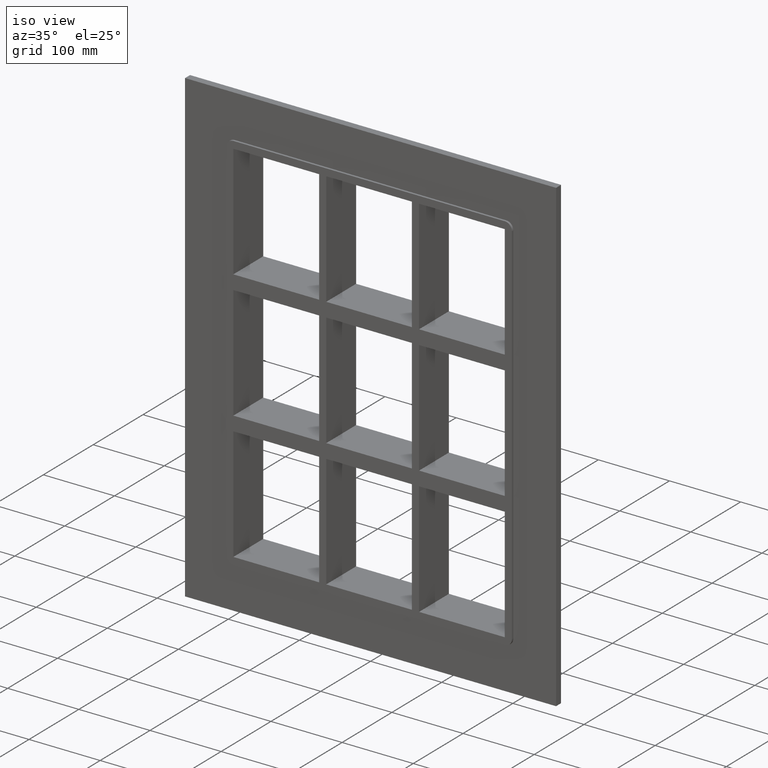
[diagram: clean part render]
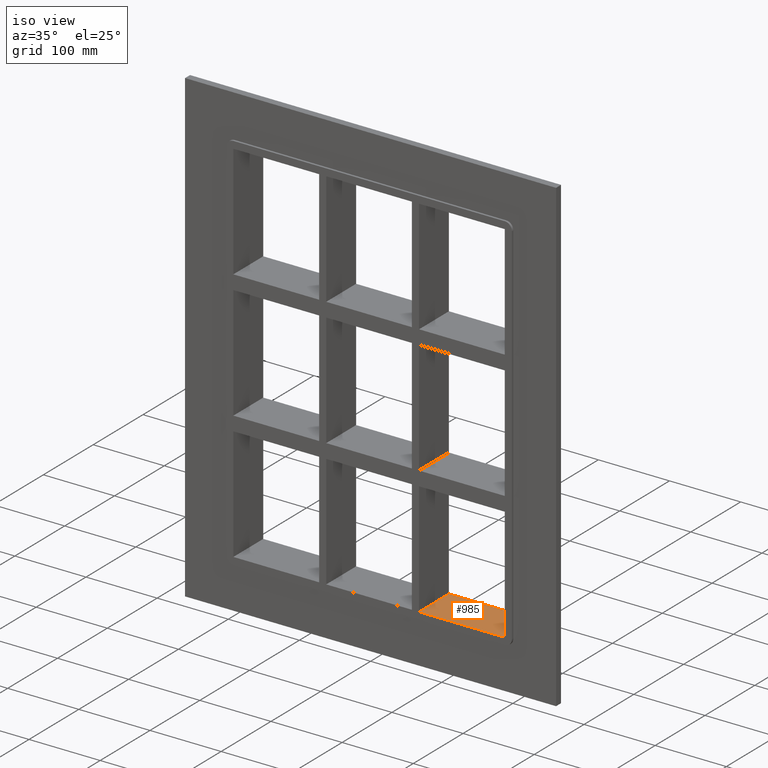
[diagram: same view with one face highlighted and labeled with its STEP entity id]
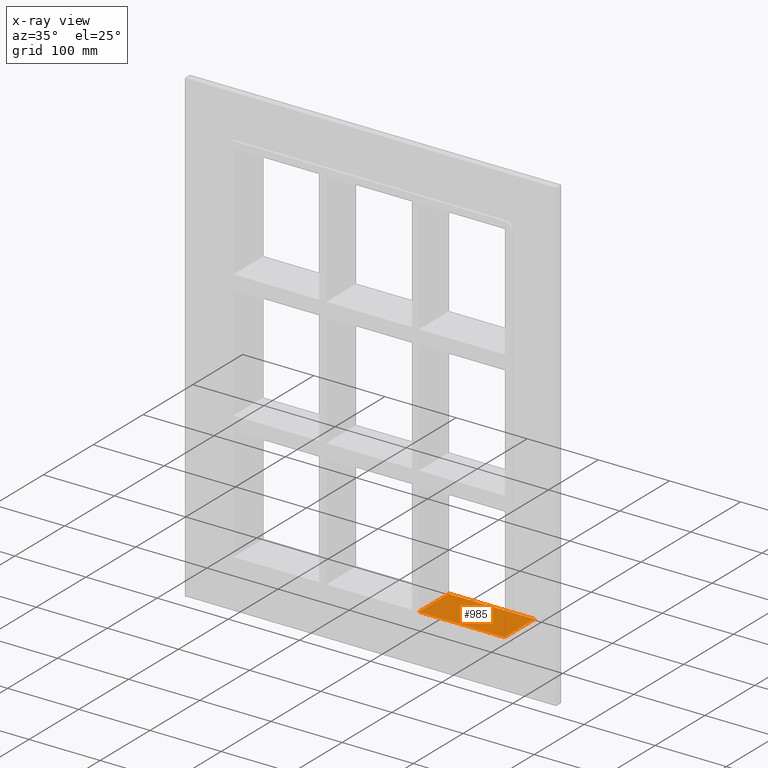
[diagram: x-ray of the same camera — body ghosted, the highlighted face saturated]
A machine part, iso view. The second image highlights one B-rep face of the part: STEP entity #985.
The next image is the same camera in x-ray: the body ghosted, the highlighted face saturated — about 0% of this face is hidden behind the body in this view.
In plain terms, the highlighted planar face has unit normal (0, 0, -1).
Its self-contained STEP definition (entity closure, byte-faithful):
#793=CARTESIAN_POINT('',(70.250000000003638,57.0,-259.24999999998414));
#794=VERTEX_POINT('',#793);
#795=CARTESIAN_POINT('',(190.75000000000003,57.0,-259.25000000000006));
#796=VERTEX_POINT('',#795);
#797=CARTESIAN_POINT('',(70.250000000003638,57.0,-259.25000000000006));
#798=DIRECTION('',(1.0,0.0,0.0));
#799=VECTOR('',#798,120.49999999999639);
#800=LINE('',#797,#799);
#801=EDGE_CURVE('',#794,#796,#800,.T.);
#920=CARTESIAN_POINT('',(70.250000000003638,-3.0,-259.24999999998408));
#921=VERTEX_POINT('',#920);
#928=CARTESIAN_POINT('',(70.250000000003638,57.000000000000007,-259.25000000000006));
#929=DIRECTION('',(0.0,-1.0,0.0));
#930=VECTOR('',#929,60.000000000000007);
#931=LINE('',#928,#930);
#932=EDGE_CURVE('',#794,#921,#931,.T.);
#962=CARTESIAN_POINT('',(190.75000000000003,0.0,-259.25000000000006));
#963=DIRECTION('',(0.0,0.0,-1.0));
#964=DIRECTION('',(-1.0,0.0,0.0));
#965=AXIS2_PLACEMENT_3D('',#962,#963,#964);
#966=PLANE('',#965);
#967=ORIENTED_EDGE('',*,*,#932,.T.);
#968=CARTESIAN_POINT('',(190.75000000000003,-3.0,-259.25000000000006));
#969=VERTEX_POINT('',#968);
#970=CARTESIAN_POINT('',(190.75000000000003,-3.0,-259.25000000000006));
#971=DIRECTION('',(-1.0,0.0,0.0));
#972=VECTOR('',#971,120.49999999999639);
#973=LINE('',#970,#972);
#974=EDGE_CURVE('',#969,#921,#973,.T.);
#975=ORIENTED_EDGE('',*,*,#974,.F.);
#976=CARTESIAN_POINT('',(190.75000000000003,57.0,-259.25000000000006));
#977=DIRECTION('',(0.0,-1.0,0.0));
#978=VECTOR('',#977,60.0);
#979=LINE('',#976,#978);
#980=EDGE_CURVE('',#796,#969,#979,.T.);
#981=ORIENTED_EDGE('',*,*,#980,.F.);
#982=ORIENTED_EDGE('',*,*,#801,.F.);
#983=EDGE_LOOP('',(#967,#975,#981,#982));
#984=FACE_OUTER_BOUND('',#983,.T.);
#985=ADVANCED_FACE('',(#984),#966,.F.);